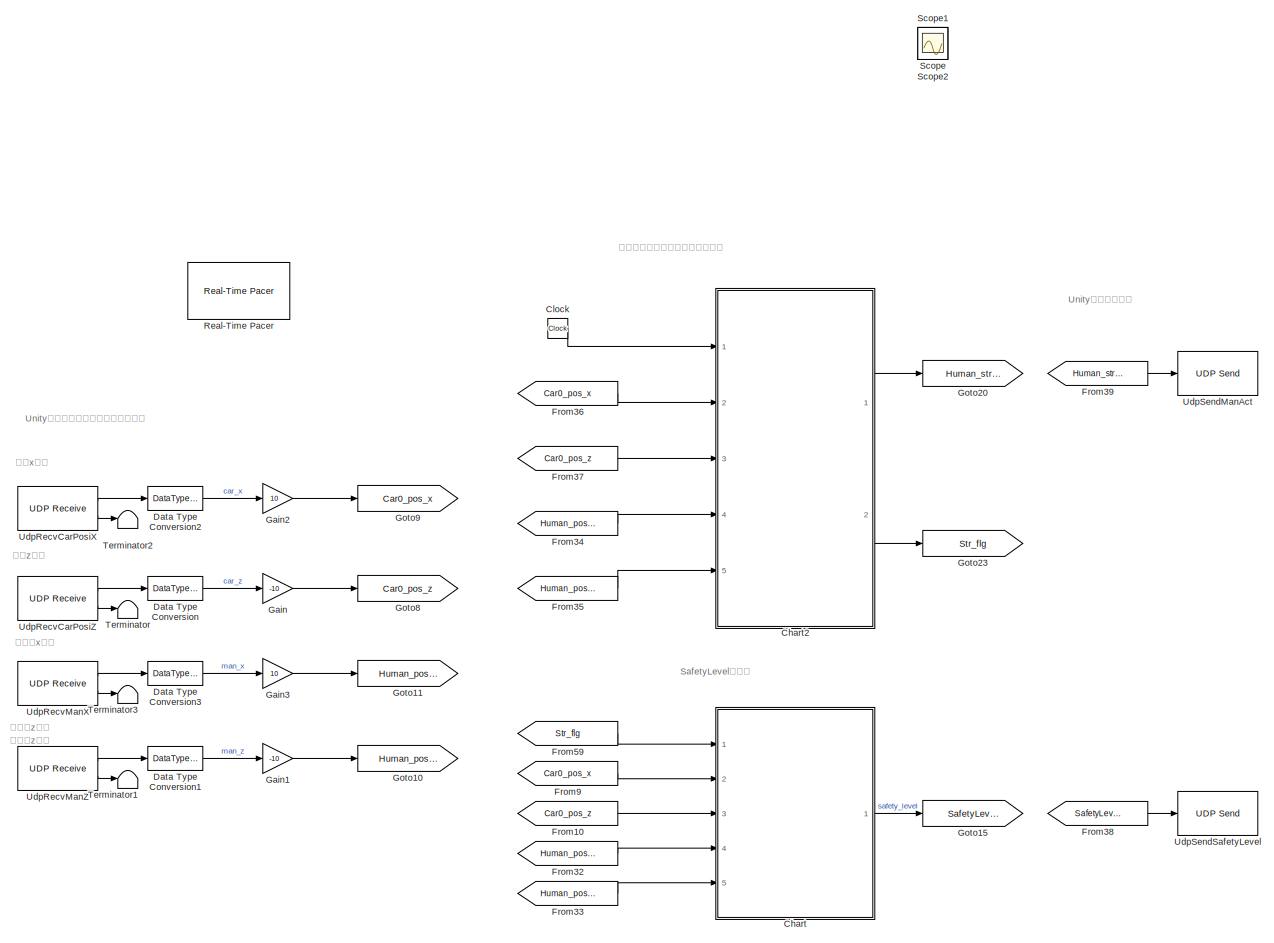
[diagram: root canvas - part 1/1, most of the canvas]
MODEL slx_a39e5c540d6b
KIND model
CONFIG AbsTol = auto
CONFIG FixedStep = 0.001
CONFIG InitFcn = Param
CONFIG MaxStep = auto
CONFIG MinStep = auto
CONFIG RelTol = 1e-3
CONFIG SampleTimeConstraint = Unconstrained
CONFIG Solver = FixedStepDiscrete
CONFIG SolverMode = Auto
CONFIG SolverName = FixedStepDiscrete
CONFIG StartTime = 0.0
CONFIG StopTime = inf
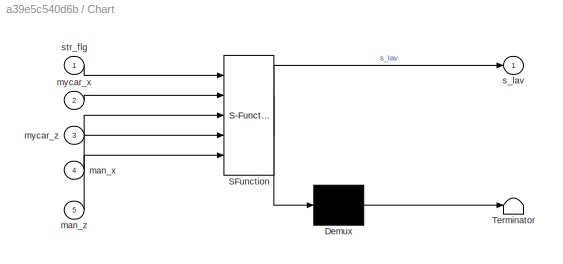
BLOCK [SubSystem] Chart
  ErrorFcn = Stateflow.Translate.translate
  PermitHierarchicalResolution = ExplicitOnly
  Ports = [5, 1]
  RequestExecContextInheritance = off
  SFBlockType = Chart
  TreatAsAtomicUnit = on
  Variant = off
BLOCK [Demux] Chart/ Demux 
  Outputs = 1
  Ports = [1, 1]
BLOCK [S-Function] Chart/ SFunction 
  EnableBusSupport = on
  FunctionName = sf_sfun
  Parameters = SIKI_1,SIKI_2,SIKI_3,SIKI_4,SIKI_5
  PortCounts = [5 2]
  Ports = [5, 2]
  SFunctionDeploymentMode = off
  Tag = Stateflow S-Function MBD_APPLI_JOC2017 3
BLOCK [Terminator] Chart/ Terminator 
BLOCK [Inport] Chart/man_x
  IconDisplay = Port number
  Port = 4
BLOCK [Inport] Chart/man_z
  IconDisplay = Port number
  Port = 5
BLOCK [Inport] Chart/mycar_x
  IconDisplay = Port number
  Port = 2
BLOCK [Inport] Chart/mycar_z
  IconDisplay = Port number
  Port = 3
BLOCK [Outport] Chart/s_lav
  IconDisplay = Port number
BLOCK [Inport] Chart/str_flg
  IconDisplay = Port number
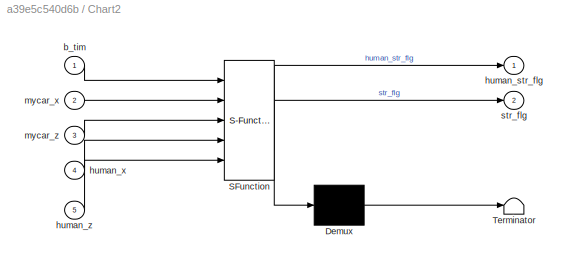
BLOCK [SubSystem] Chart2
  ErrorFcn = Stateflow.Translate.translate
  PermitHierarchicalResolution = ExplicitOnly
  Ports = [5, 2]
  RequestExecContextInheritance = off
  SFBlockType = Chart
  TreatAsAtomicUnit = on
  Variant = off
BLOCK [Demux] Chart2/ Demux 
  Outputs = 1
  Ports = [1, 1]
BLOCK [S-Function] Chart2/ SFunction 
  EnableBusSupport = on
  FunctionName = sf_sfun
  Parameters = HMAN_INI_X,HMAN_INI_Z,HMAN_VEL_K,H_MOV_LEV,H_TAG_DIS,MYCAR_INI_X,MYCAR_INI_Z
  PortCounts = [5 3]
  Ports = [5, 3]
  SFunctionDeploymentMode = off
  Tag = Stateflow S-Function MBD_APPLI_JOC2017 1
BLOCK [Terminator] Chart2/ Terminator 
BLOCK [Inport] Chart2/b_tim
  IconDisplay = Port number
BLOCK [Outport] Chart2/human_str_flg
  IconDisplay = Port number
BLOCK [Inport] Chart2/human_x
  IconDisplay = Port number
  Port = 4
BLOCK [Inport] Chart2/human_z
  IconDisplay = Port number
  Port = 5
BLOCK [Inport] Chart2/mycar_x
  IconDisplay = Port number
  Port = 2
BLOCK [Inport] Chart2/mycar_z
  IconDisplay = Port number
  Port = 3
BLOCK [Outport] Chart2/str_flg
  IconDisplay = Port number
  Port = 2
BLOCK [Clock] Clock
BLOCK [DataTypeConversion] Data Type Conversion
  OutDataTypeStr = double
  RndMeth = Floor
  SaturateOnIntegerOverflow = off
BLOCK [DataTypeConversion] Data Type Conversion1
  OutDataTypeStr = double
  RndMeth = Floor
  SaturateOnIntegerOverflow = off
BLOCK [DataTypeConversion] Data Type Conversion2
  OutDataTypeStr = double
  RndMeth = Floor
  SaturateOnIntegerOverflow = off
BLOCK [DataTypeConversion] Data Type Conversion3
  OutDataTypeStr = double
  RndMeth = Floor
  SaturateOnIntegerOverflow = off
BLOCK [From] From10
  GotoTag = Car0_pos_z
  TagVisibility = global
BLOCK [From] From32
  GotoTag = Human_pos_x
  TagVisibility = global
BLOCK [From] From33
  GotoTag = Human_pos_z
  TagVisibility = global
BLOCK [From] From34
  GotoTag = Human_pos_x
  TagVisibility = global
BLOCK [From] From35
  GotoTag = Human_pos_z
  TagVisibility = global
BLOCK [From] From36
  GotoTag = Car0_pos_x
  TagVisibility = global
BLOCK [From] From37
  GotoTag = Car0_pos_z
  TagVisibility = global
BLOCK [From] From38
  GotoTag = SafetyLevel
  TagVisibility = global
BLOCK [From] From39
  GotoTag = Human_str_flg
  TagVisibility = global
BLOCK [From] From59
  GotoTag = Str_flg
  TagVisibility = global
BLOCK [From] From9
  GotoTag = Car0_pos_x
  TagVisibility = global
BLOCK [Gain] Gain
  Gain = -10
  OutDataTypeStr = Inherit: Inherit via internal rule
  ParamDataTypeStr = Inherit: Inherit via internal rule
  SaturateOnIntegerOverflow = off
BLOCK [Gain] Gain1
  Gain = -10
  OutDataTypeStr = Inherit: Inherit via internal rule
  ParamDataTypeStr = Inherit: Inherit via internal rule
  SaturateOnIntegerOverflow = off
BLOCK [Gain] Gain2
  Gain = 10
  OutDataTypeStr = Inherit: Inherit via internal rule
  ParamDataTypeStr = Inherit: Inherit via internal rule
  SaturateOnIntegerOverflow = off
BLOCK [Gain] Gain3
  Gain = 10
  OutDataTypeStr = Inherit: Inherit via internal rule
  ParamDataTypeStr = Inherit: Inherit via internal rule
  SaturateOnIntegerOverflow = off
BLOCK [Goto] Goto10
  GotoTag = Human_pos_z
  TagVisibility = global
BLOCK [Goto] Goto11
  GotoTag = Human_pos_x
  TagVisibility = global
BLOCK [Goto] Goto15
  GotoTag = SafetyLevel
  TagVisibility = global
BLOCK [Goto] Goto20
  GotoTag = Human_str_flg
  TagVisibility = global
BLOCK [Goto] Goto23
  GotoTag = Str_flg
  TagVisibility = global
BLOCK [Goto] Goto8
  GotoTag = Car0_pos_z
  TagVisibility = global
BLOCK [Goto] Goto9
  GotoTag = Car0_pos_x
  TagVisibility = global
BLOCK [Reference] Real-Time Pacer  REF=realtime_pacer_lib/Real-Time Pacer
  Ports = []
  SourceBlock = realtime_pacer_lib/Real-Time Pacer
  SourceType = RealTime_Pacer
BLOCK [Scope] Scope
  IOType = viewer
  Ports = []
  ScopeSpecificationString = Simulink.scopes.TimeScopeBlockCfg('CurrentConfiguration', extmgr.ConfigurationSet(extmgr.Configuration('Core','General UI',true),extmgr.Configuration('Core','Source UI',true),extmgr.Configuration('Sources','WiredSimulink',true),extmgr.Configuration('Visuals','Time Domain',true,'SerializedDisplays',{struct('MinYLimReal','-0.375','MaxYLimReal','3.375','YLabelReal','','MinYLimMag','0.00000','MaxYLimM...<+1565ch>
BLOCK [Scope] Scope1
  IOType = viewer
  Ports = []
  ScopeSpecificationString = Simulink.scopes.TimeScopeBlockCfg('CurrentConfiguration', extmgr.ConfigurationSet(extmgr.Configuration('Core','General UI',true),extmgr.Configuration('Core','Source UI',true),extmgr.Configuration('Sources','WiredSimulink',true,'DataLoggingVariableName','ScopeData1'),extmgr.Configuration('Visuals','Time Domain',true,'SerializedDisplays',{struct('MinYLimReal','-18.83843','MaxYLimReal','-13.62138','Y...<+1744ch>
BLOCK [Scope] Scope2
  IOType = viewer
  Ports = []
  ScopeSpecificationString = Simulink.scopes.TimeScopeBlockCfg('CurrentConfiguration', extmgr.ConfigurationSet(extmgr.Configuration('Core','General UI',true),extmgr.Configuration('Core','Source UI',true),extmgr.Configuration('Sources','WiredSimulink',true,'DataLoggingVariableName','ScopeData2'),extmgr.Configuration('Visuals','Time Domain',true,'SerializedDisplays',{struct('MinYLimReal','-39.46206','MaxYLimReal','-38.9235','YL...<+1714ch>
BLOCK [Terminator] Terminator
BLOCK [Terminator] Terminator1
BLOCK [Terminator] Terminator2
BLOCK [Terminator] Terminator3
BLOCK [Reference] UdpRecvCarPosiX  REF=dspnetwork/UDP Receive
  Ports = [0, 2]
  SourceBlock = dspnetwork/UDP Receive
  SourceType = UDP Receive
BLOCK [Reference] UdpRecvCarPosiZ  REF=dspnetwork/UDP Receive
  Ports = [0, 2]
  SourceBlock = dspnetwork/UDP Receive
  SourceType = UDP Receive
BLOCK [Reference] UdpRecvManX  REF=dspnetwork/UDP Receive
  Ports = [0, 2]
  SourceBlock = dspnetwork/UDP Receive
  SourceType = UDP Receive
BLOCK [Reference] UdpRecvManZ  REF=dspnetwork/UDP Receive
  Ports = [0, 2]
  SourceBlock = dspnetwork/UDP Receive
  SourceType = UDP Receive
BLOCK [Reference] UdpSendManAct  REF=dspnetwork/UDP Send
  Ports = [1]
  SourceBlock = dspnetwork/UDP Send
  SourceType = UDP Send
BLOCK [Reference] UdpSendSafetyLevel  REF=dspnetwork/UDP Send
  Ports = [1]
  SourceBlock = dspnetwork/UDP Send
  SourceType = UDP Send
ANNOTATION (root): ヒトのx座標
ANNOTATION (root): ヒトのz座標
ANNOTATION (root): 車のx座標
ANNOTATION (root): 車のz座標
ANNOTATION (root): SafetyLevelを演算
ANNOTATION (root): Unityが出力する自車と人の座標取得
ANNOTATION (root): Unityへの指令信号
ANNOTATION (root): 人が動き始めるタイミングを演算
LINE Chart2:1 -> Goto20:1
LINE Chart2:2 -> Goto23:1
LINE Chart:1 -> Goto15:1
LINE Clock:1 -> Chart2:1
LINE Data Type Conversion1:1 -> Gain1:1
LINE Data Type Conversion2:1 -> Gain2:1
LINE Data Type Conversion3:1 -> Gain3:1
LINE Data Type Conversion:1 -> Gain:1
LINE From10:1 -> Chart:3
LINE From32:1 -> Chart:4
LINE From33:1 -> Chart:5
LINE From34:1 -> Chart2:4
LINE From35:1 -> Chart2:5
LINE From36:1 -> Chart2:2
LINE From37:1 -> Chart2:3
LINE From38:1 -> UdpSendSafetyLevel:1
LINE From39:1 -> UdpSendManAct:1
LINE From59:1 -> Chart:1
LINE From9:1 -> Chart:2
LINE Gain1:1 -> Goto10:1
LINE Gain2:1 -> Goto9:1
LINE Gain3:1 -> Goto11:1
LINE Gain:1 -> Goto8:1
LINE UdpRecvCarPosiX:1 -> Data Type Conversion2:1
LINE UdpRecvCarPosiX:2 -> Terminator2:1
LINE UdpRecvCarPosiZ:1 -> Data Type Conversion:1
LINE UdpRecvCarPosiZ:2 -> Terminator:1
LINE UdpRecvManX:1 -> Data Type Conversion3:1
LINE UdpRecvManX:2 -> Terminator3:1
LINE UdpRecvManZ:1 -> Data Type Conversion1:1
LINE UdpRecvManZ:2 -> Terminator1:1
CHART Chart2 states=0 transitions=23
CHART Chart states=0 transitions=13
